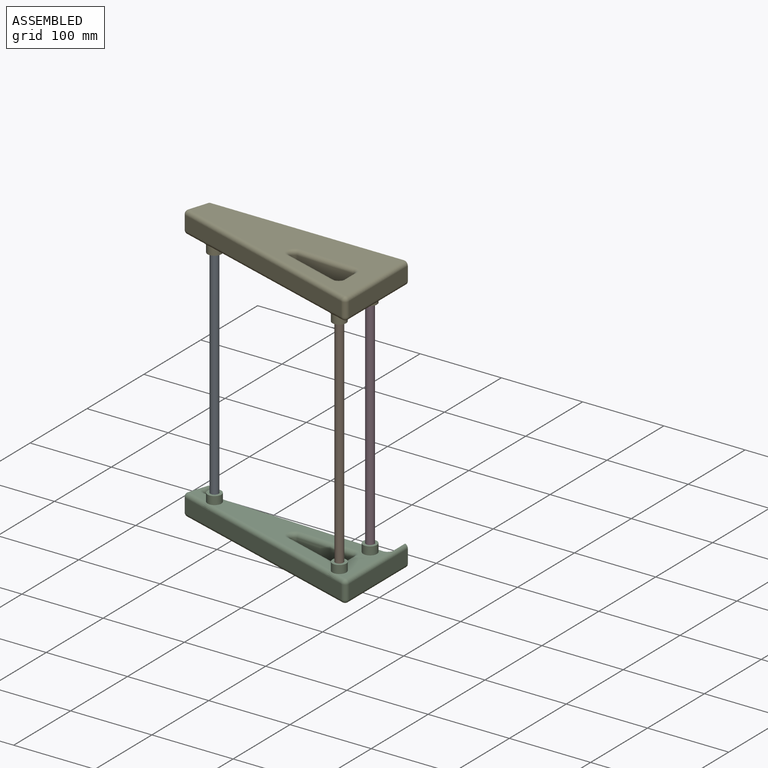
[diagram: assembled view]
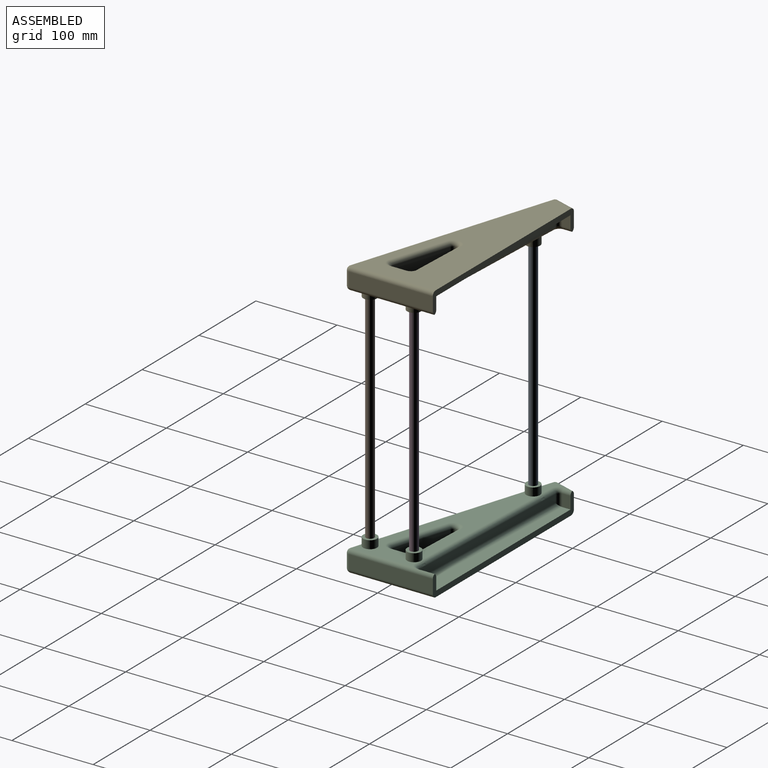
[diagram: assembled view, second angle]
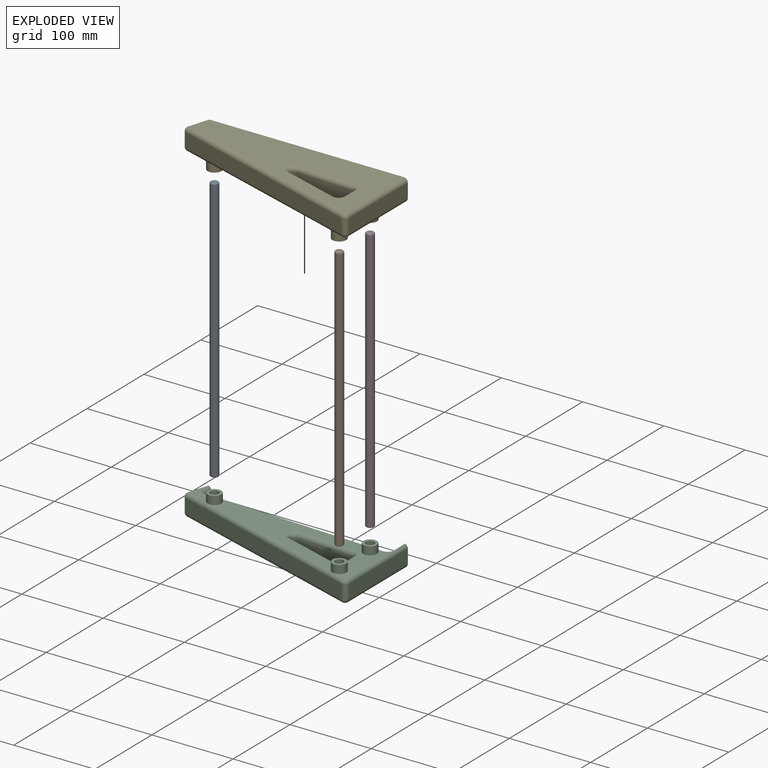
[diagram: exploded view]
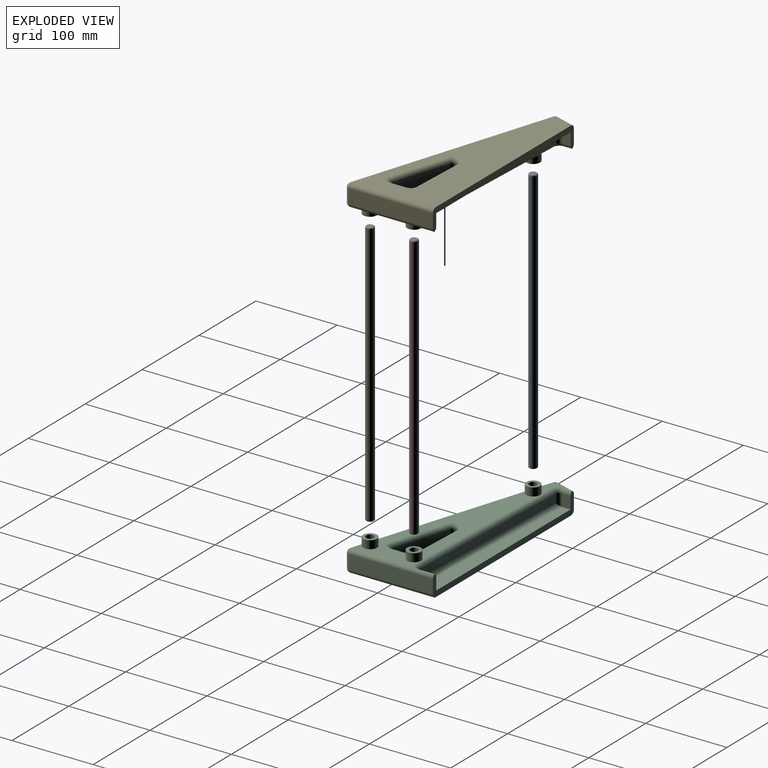
[diagram: exploded view, second angle]
ASSEMBLY  parts=5 mates=4
PART A: 5 faces, bbox 10.8x10.8x327.4 mm
  f0: cylinder r=5mm len=324.4mm, axis (0,0,-1), area 10191.3mm2, adj f3,f4
  f1: plane 7x7mm, normal (0,0,1), area 38.5mm2, adj f4
  f2: plane 7x7mm, normal (0,0,-1), area 38.5mm2, adj f3
  f3: torus R=3.5mm, axis (0,0,1), area 66mm2, adj f0,f2
  f4: torus R=3.5mm, axis (0,0,1), area 66mm2, adj f0,f1
PART B: same geometry as A
PART C: 69 faces, bbox 260.1x110.3x37.7 mm
  f0: plane 209.51x81.99mm, normal (0,0,1), area 6182.5mm2, adj f14,f18,f22,f26,f27,f28,f29,f31
  f1: plane 30.31x21.02mm, normal (0,0,1), area 258.4mm2, adj f14,f61,f64,f66,f67
  f2: plane 19.28x17mm, normal (-1,0,0), area 327.7mm2, adj f27,f30,f34,f35
  f3: plane 70.29x22.26mm, normal (0.3,0.95,0), area 1253.4mm2, adj f28,f35,f36,f40
  f4: plane 245.78x77.83mm, normal (-0.3,-0.95,0), area 4387.1mm2, adj f42,f43,f48,f52,f53,f57,f61,f62
  f5: plane 103.17x17mm, normal (1,0,0), area 1753.9mm2, adj f6,f43,f44,f46
  f6: plane 248.67x27.25mm, normal (0,1,0), area 1944.5mm2, adj f5,f7,f9,f11,f12,f13,f44,f45
  f7: plane 19.78x15mm, normal (-1,0,0), area 296.8mm2, adj f6,f12,f45,f55
  f8: plane 226x10.04mm, normal (0.04,1,0), area 2262.3mm2, adj f47,f51,f55,f56,f59,f60,f63,f64
  f9: plane 15x10.21mm, normal (1,0,0), area 153.1mm2, adj f6,f12,f59,f63,f68
  f10: plane 70.29x17mm, normal (-0.04,-1,0), area 1195.9mm2, adj f29,f30,f36,f37
  f11: plane 23.83x17mm, normal (-0.95,0.3,0), area 425mm2, adj f6,f54,f62,f67
  f12: plane 236x20mm, normal (0,0,1), area 3538.9mm2, adj f6,f7,f9,f55,f59
  f13: plane 245.78x103.17mm, normal (0,0,-1), area 13066.3mm2, adj f6,f33,f34,f37,f38,f39,f40,f44
  f14: cylinder r=8.5mm len=17mm, axis (0,0,-1), area 534.1mm2, adj f0,f1,f15,f57,f60
  f15: plane 17x17mm, normal (0,0,1), area 145.3mm2, adj f14,f17
  f16: plane 10.2x10.2mm, normal (0,0,1), area 81.7mm2, adj f17
  f17: cylinder r=5.1mm len=30mm, axis (0,0,-1), area 961.3mm2, adj f15,f16
  f18: cylinder r=8.5mm len=17mm, axis (0,0,-1), area 534.1mm2, adj f0,f19,f51
  f19: plane 17x17mm, normal (0,0,1), area 145.3mm2, adj f18,f21
  f20: plane 10.2x10.2mm, normal (0,0,1), area 81.7mm2, adj f21
  f21: cylinder r=5.1mm len=30mm, axis (0,0,-1), area 961.3mm2, adj f19,f20
  f22: cylinder r=8.5mm len=17mm, axis (0,0,-1), area 534.1mm2, adj f0,f23,f48
  f23: plane 17x17mm, normal (0,0,1), area 145.3mm2, adj f22,f25
  f24: plane 10.2x10.2mm, normal (0,0,1), area 81.7mm2, adj f25
  f25: cylinder r=5.1mm len=30mm, axis (0,0,-1), area 961.3mm2, adj f23,f24
  f26: torus R=10mm, axis (0,0,1), area 81.8mm2, adj f0,f27,f29,f30
  f27: cylinder r=5mm len=19.28mm, axis (0,1,0), area 151.4mm2, adj f0,f2,f26,f31
  f28: cylinder r=5mm len=71.8mm, axis (0.95,-0.3,0), area 579mm2, adj f0,f3,f31,f32
  f29: cylinder r=5mm len=70.5mm, axis (-1,0.04,0), area 552.5mm2, adj f0,f10,f26,f32
  f30: cylinder r=5mm len=17mm, axis (0,0,-1), area 129.9mm2, adj f2,f10,f26,f33
  f31: torus R=10mm, axis (0,0,1), area 100.5mm2, adj f0,f27,f28,f35
  f32: torus R=10mm, axis (0,0,1), area 154mm2, adj f0,f28,f29,f36
  f33: torus R=10mm, axis (0,0,1), area 81.8mm2, adj f13,f30,f34,f37
  f34: cylinder r=5mm len=19.28mm, axis (0,-1,0), area 151.4mm2, adj f2,f13,f33,f38
  f35: cylinder r=5mm len=17mm, axis (0,0,-1), area 159.6mm2, adj f2,f3,f31,f38
  f36: cylinder r=5mm len=17mm, axis (0,0,1), area 244.6mm2, adj f3,f10,f32,f39
  f37: cylinder r=5mm len=70.5mm, axis (1,-0.04,0), area 552.5mm2, adj f10,f13,f33,f39
  f38: torus R=10mm, axis (0,0,1), area 100.5mm2, adj f13,f34,f35,f40
  f39: torus R=10mm, axis (0,0,1), area 154mm2, adj f13,f36,f37,f40
  f40: cylinder r=5mm len=71.8mm, axis (-0.95,0.3,0), area 579mm2, adj f3,f13,f38,f39
  f41: sphere r=5mm, area 44.2mm2, adj f42,f43,f46
  f42: cylinder r=5mm len=13.63mm, axis (-0.95,0.3,0), area 99.9mm2, adj f0,f4,f41,f48
  f43: cylinder r=5mm len=17mm, axis (0,0,1), area 159.6mm2, adj f4,f5,f41,f49
  f44: cylinder r=5mm len=103.17mm, axis (0,1,0), area 810.3mm2, adj f5,f6,f13,f49
  f45: cylinder r=5mm len=19.78mm, axis (0,1,0), area 114.7mm2, adj f6,f7,f46,f50
  f46: cylinder r=5mm len=103.17mm, axis (0,-1,0), area 761.4mm2, adj f0,f5,f6,f41,f45,f50
  f47: cylinder r=5mm len=5.67mm, axis (1,-0.04,0), area 42.9mm2, adj f0,f8,f50,f51
  f48: bspline ~12.67x8.46mm, area 70.7mm2, adj f4,f22,f42,f52
  f49: sphere r=5mm, area 46.9mm2, adj f43,f44,f53
  f50: torus R=10mm, axis (0,0,1), area 77.5mm2, adj f0,f45,f46,f47,f55
  f51: bspline ~7.83x5.64mm, area 46.3mm2, adj f8,f18,f47,f56
  f52: cylinder r=5mm len=188.55mm, axis (-0.95,0.3,0), area 1540.9mm2, adj f0,f4,f48,f57
  f53: cylinder r=5mm len=247.29mm, axis (0.95,-0.3,0), area 2024.8mm2, adj f4,f13,f49,f58
  f54: cylinder r=5mm len=26.85mm, axis (-0.3,-0.95,0), area 202.6mm2, adj f6,f11,f13,f58
  f55: cylinder r=5mm len=15mm, axis (0,0,-1), area 106.7mm2, adj f7,f8,f12,f50,f59
  f56: cylinder r=5mm len=191.39mm, axis (1,-0.04,0), area 1502.9mm2, adj f0,f8,f51,f60
  f57: bspline ~12.67x8.46mm, area 70.7mm2, adj f4,f14,f52,f61
  f58: sphere r=5mm, area 39.3mm2, adj f53,f54,f62
  f59: cylinder r=5mm len=236.21mm, axis (-1,0.04,0), area 1826.6mm2, adj f8,f9,f12,f55,f63
  f60: bspline ~7.83x5.64mm, area 46.3mm2, adj f8,f14,f56,f64
  f61: cylinder r=5mm len=27.44mm, axis (-0.95,0.3,0), area 213.6mm2, adj f1,f4,f57,f65
  f62: cylinder r=5mm len=17mm, axis (0,0,-1), area 133.5mm2, adj f4,f11,f58,f65
  f63: cylinder r=5mm len=15mm, axis (0,0,1), area 100.4mm2, adj f8,f9,f59,f66
  f64: cylinder r=5mm len=17.16mm, axis (1,-0.04,0), area 133.2mm2, adj f1,f8,f60,f66
  f65: sphere r=5mm, area 39.3mm2, adj f61,f62,f67
  f66: torus R=10mm, axis (0,0,1), area 81.3mm2, adj f1,f63,f64,f67,f68
  f67: cylinder r=5mm len=26.23mm, axis (0.3,0.95,0), area 187mm2, adj f1,f6,f11,f65,f66,f68
  f68: cylinder r=5mm len=10.21mm, axis (0,-1,0), area 66.7mm2, adj f6,f9,f66,f67
PART D: same geometry as A
PART E: 69 faces, bbox 260.1x110.3x37.7 mm
  f0: plane 209.51x81.99mm, normal (0,0,-1), area 6182.5mm2, adj f14,f18,f22,f26,f27,f28,f29,f31
  f1: plane 30.31x21.02mm, normal (0,0,-1), area 258.4mm2, adj f14,f61,f64,f66,f67
  f2: plane 19.28x17mm, normal (-1,0,0), area 327.7mm2, adj f27,f30,f34,f35
  f3: plane 70.29x22.26mm, normal (0.3,0.95,0), area 1253.4mm2, adj f28,f35,f36,f40
  f4: plane 245.78x77.83mm, normal (-0.3,-0.95,0), area 4387.1mm2, adj f42,f43,f48,f52,f53,f57,f61,f62
  f5: plane 103.17x17mm, normal (1,0,0), area 1753.9mm2, adj f6,f43,f44,f46
  f6: plane 248.67x27.25mm, normal (0,1,0), area 1944.5mm2, adj f5,f7,f9,f11,f12,f13,f44,f45
  f7: plane 19.78x15mm, normal (-1,0,0), area 296.8mm2, adj f6,f12,f45,f55
  f8: plane 226x10.04mm, normal (0.04,1,0), area 2262.3mm2, adj f47,f51,f55,f56,f59,f60,f63,f64
  f9: plane 15x10.21mm, normal (1,0,0), area 153.1mm2, adj f6,f12,f59,f63,f68
  f10: plane 70.29x17mm, normal (-0.04,-1,0), area 1195.9mm2, adj f29,f30,f36,f37
  f11: plane 23.83x17mm, normal (-0.95,0.3,0), area 425mm2, adj f6,f54,f62,f67
  f12: plane 236x20mm, normal (0,0,-1), area 3538.9mm2, adj f6,f7,f9,f55,f59
  f13: plane 245.78x103.17mm, normal (0,0,1), area 13066.3mm2, adj f6,f33,f34,f37,f38,f39,f40,f44
  f14: cylinder r=8.5mm len=17mm, axis (0,0,1), area 534.1mm2, adj f0,f1,f15,f57,f60
  f15: plane 17x17mm, normal (0,0,-1), area 145.3mm2, adj f14,f17
  f16: plane 10.2x10.2mm, normal (0,0,-1), area 81.7mm2, adj f17
  f17: cylinder r=5.1mm len=30mm, axis (0,0,1), area 961.3mm2, adj f15,f16
  f18: cylinder r=8.5mm len=17mm, axis (0,0,1), area 534.1mm2, adj f0,f19,f51
  f19: plane 17x17mm, normal (0,0,-1), area 145.3mm2, adj f18,f21
  f20: plane 10.2x10.2mm, normal (0,0,-1), area 81.7mm2, adj f21
  f21: cylinder r=5.1mm len=30mm, axis (0,0,1), area 961.3mm2, adj f19,f20
  f22: cylinder r=8.5mm len=17mm, axis (0,0,1), area 534.1mm2, adj f0,f23,f48
  f23: plane 17x17mm, normal (0,0,-1), area 145.3mm2, adj f22,f25
  f24: plane 10.2x10.2mm, normal (0,0,-1), area 81.7mm2, adj f25
  f25: cylinder r=5.1mm len=30mm, axis (0,0,1), area 961.3mm2, adj f23,f24
  f26: torus R=10mm, axis (0,0,-1), area 81.8mm2, adj f0,f27,f29,f30
  f27: cylinder r=5mm len=19.28mm, axis (0,1,0), area 151.4mm2, adj f0,f2,f26,f31
  f28: cylinder r=5mm len=71.8mm, axis (0.95,-0.3,0), area 579mm2, adj f0,f3,f31,f32
  f29: cylinder r=5mm len=70.5mm, axis (-1,0.04,0), area 552.5mm2, adj f0,f10,f26,f32
  f30: cylinder r=5mm len=17mm, axis (0,0,1), area 129.9mm2, adj f2,f10,f26,f33
  f31: torus R=10mm, axis (0,0,-1), area 100.5mm2, adj f0,f27,f28,f35
  f32: torus R=10mm, axis (0,0,-1), area 154mm2, adj f0,f28,f29,f36
  f33: torus R=10mm, axis (0,0,-1), area 81.8mm2, adj f13,f30,f34,f37
  f34: cylinder r=5mm len=19.28mm, axis (0,-1,0), area 151.4mm2, adj f2,f13,f33,f38
  f35: cylinder r=5mm len=17mm, axis (0,0,1), area 159.6mm2, adj f2,f3,f31,f38
  f36: cylinder r=5mm len=17mm, axis (0,0,-1), area 244.6mm2, adj f3,f10,f32,f39
  f37: cylinder r=5mm len=70.5mm, axis (1,-0.04,0), area 552.5mm2, adj f10,f13,f33,f39
  f38: torus R=10mm, axis (0,0,-1), area 100.5mm2, adj f13,f34,f35,f40
  f39: torus R=10mm, axis (0,0,-1), area 154mm2, adj f13,f36,f37,f40
  f40: cylinder r=5mm len=71.8mm, axis (-0.95,0.3,0), area 579mm2, adj f3,f13,f38,f39
  f41: sphere r=5mm, area 44.2mm2, adj f42,f43,f46
  f42: cylinder r=5mm len=13.63mm, axis (-0.95,0.3,0), area 99.9mm2, adj f0,f4,f41,f48
  f43: cylinder r=5mm len=17mm, axis (0,0,-1), area 159.6mm2, adj f4,f5,f41,f49
  f44: cylinder r=5mm len=103.17mm, axis (0,1,0), area 810.3mm2, adj f5,f6,f13,f49
  f45: cylinder r=5mm len=19.78mm, axis (0,1,0), area 114.7mm2, adj f6,f7,f46,f50
  f46: cylinder r=5mm len=103.17mm, axis (0,-1,0), area 761.4mm2, adj f0,f5,f6,f41,f45,f50
  f47: cylinder r=5mm len=5.67mm, axis (1,-0.04,0), area 42.9mm2, adj f0,f8,f50,f51
  f48: bspline ~12.67x8.46mm, area 70.7mm2, adj f4,f22,f42,f52
  f49: sphere r=5mm, area 46.9mm2, adj f43,f44,f53
  f50: torus R=10mm, axis (0,0,-1), area 77.5mm2, adj f0,f45,f46,f47,f55
  f51: bspline ~7.53x5.52mm, area 46.3mm2, adj f8,f18,f47,f56
  f52: cylinder r=5mm len=188.55mm, axis (-0.95,0.3,0), area 1540.9mm2, adj f0,f4,f48,f57
  f53: cylinder r=5mm len=247.29mm, axis (0.95,-0.3,0), area 2024.8mm2, adj f4,f13,f49,f58
  f54: cylinder r=5mm len=26.85mm, axis (-0.3,-0.95,0), area 202.6mm2, adj f6,f11,f13,f58
  f55: cylinder r=5mm len=15mm, axis (0,0,1), area 106.7mm2, adj f7,f8,f12,f50,f59
  f56: cylinder r=5mm len=191.39mm, axis (1,-0.04,0), area 1502.9mm2, adj f0,f8,f51,f60
  f57: bspline ~12.67x8.46mm, area 70.7mm2, adj f4,f14,f52,f61
  f58: sphere r=5mm, area 39.3mm2, adj f53,f54,f62
  f59: cylinder r=5mm len=236.21mm, axis (-1,0.04,0), area 1826.6mm2, adj f8,f9,f12,f55,f63
  f60: bspline ~7.53x5.52mm, area 46.3mm2, adj f8,f14,f56,f64
  f61: cylinder r=5mm len=27.44mm, axis (-0.95,0.3,0), area 213.6mm2, adj f1,f4,f57,f65
  f62: cylinder r=5mm len=17mm, axis (0,0,1), area 133.5mm2, adj f4,f11,f58,f65
  f63: cylinder r=5mm len=15mm, axis (0,0,-1), area 100.4mm2, adj f8,f9,f59,f66
  f64: cylinder r=5mm len=17.16mm, axis (1,-0.04,0), area 133.2mm2, adj f1,f8,f60,f66
  f65: sphere r=5mm, area 39.3mm2, adj f61,f62,f67
  f66: torus R=10mm, axis (0,0,-1), area 81.3mm2, adj f1,f63,f64,f67,f68
  f67: cylinder r=5mm len=26.23mm, axis (0.3,0.95,0), area 187mm2, adj f1,f6,f11,f65,f66,f68
  f68: cylinder r=5mm len=10.21mm, axis (0,-1,0), area 66.7mm2, adj f6,f9,f66,f67
PLACE A rot(axis=(1,0,0),180deg) t=(-76.14,12.68,359.36)mm
PLACE B rot(axis=(1,0,0),180deg) t=(121.25,-49.82,359.36)mm
PLACE C t=(-32.47,-38.93,31.96)mm
PLACE D rot(axis=(1,0,0),180deg) t=(121.25,4.32,359.36)mm
PLACE E t=(-32.47,-38.93,259.36)mm
MATE fastened B.f0 <-> C.f22  axis (0,0,-1) through (71.21,-29.39,31.96)mm
MATE fastened D.f0 <-> E.f18  axis (0,0,1) through (71.21,24.75,359.36)mm
MATE fastened A.f0 <-> C.f14  axis (0,0,-1) through (-126.18,33.11,31.96)mm
MATE fastened D.f0 <-> C.f18  axis (0,0,-1) through (71.21,24.75,31.96)mm
